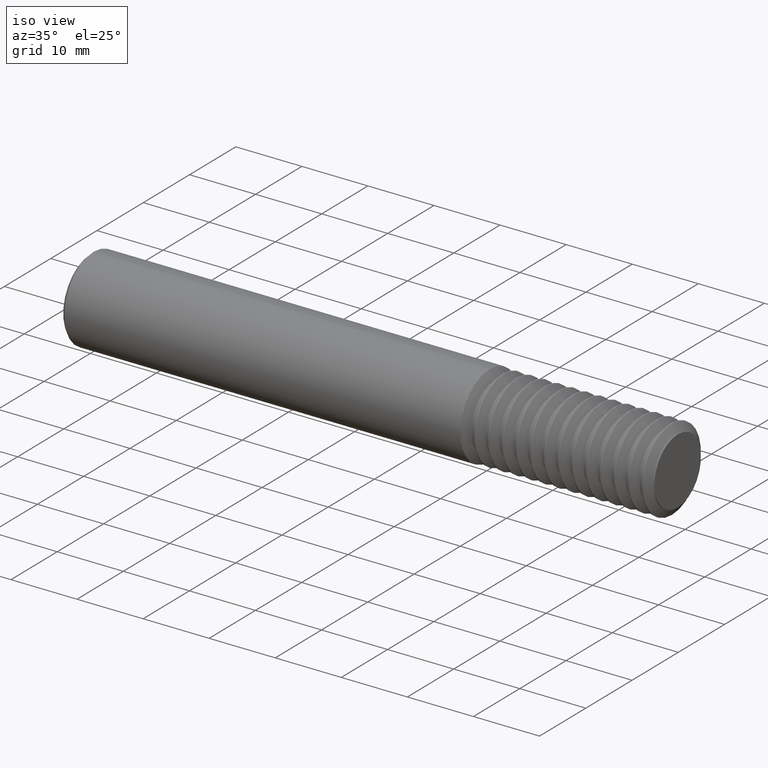
[diagram: clean part render]
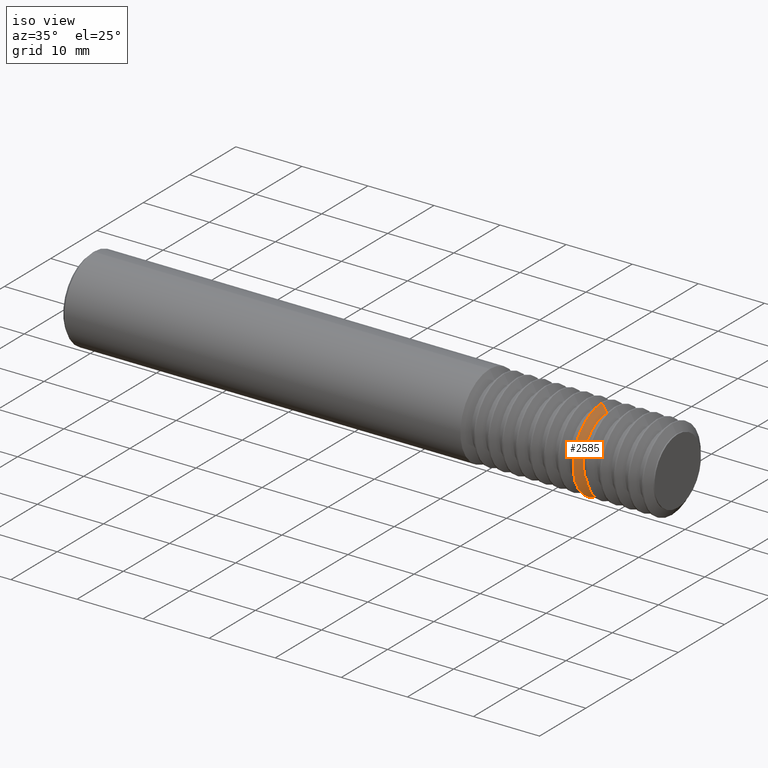
[diagram: same view with one face highlighted and labeled with its STEP entity id]
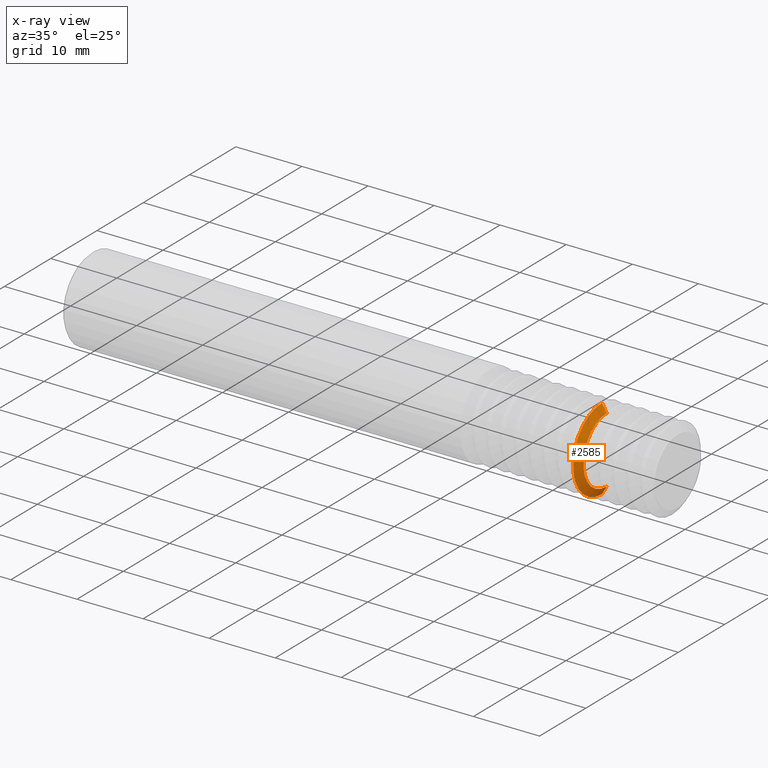
[diagram: x-ray of the same camera — body ghosted, the highlighted face saturated]
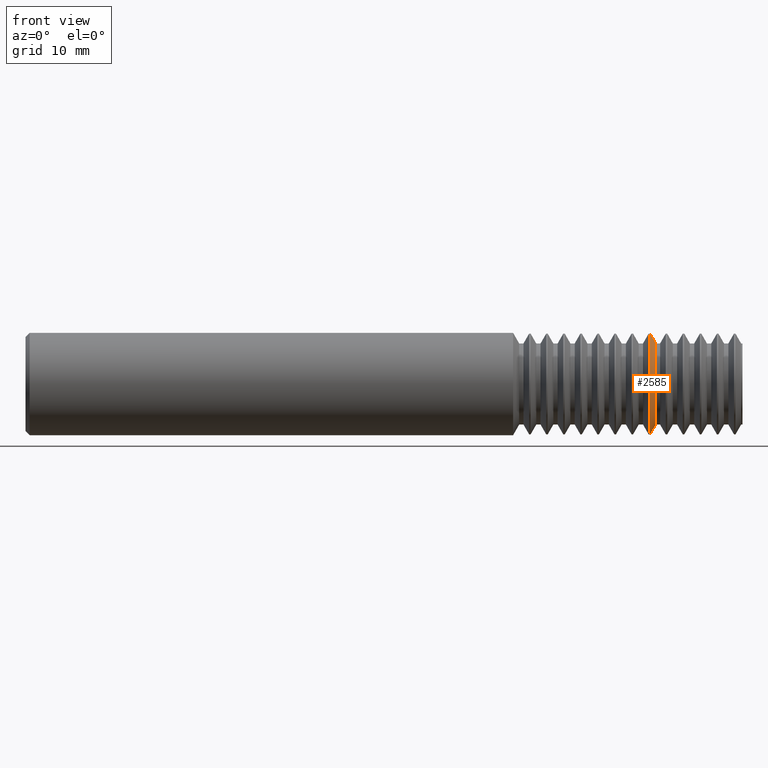
[diagram: same view with one face highlighted and labeled with its STEP entity id]
A machine part, iso view. The second image highlights one B-rep face of the part: STEP entity #2585.
The next image is the same camera in x-ray: the body ghosted, the highlighted face saturated — about 0% of this face is hidden behind the body in this view.
A second angle (front view) of the same face is appended — the face is thin or edge-on in the first view.
In plain terms, the highlighted conical surface has half-angle 60.2 deg.
Its self-contained STEP definition (entity closure, byte-faithful):
#35 = CARTESIAN_POINT ( 'NONE',  ( 3.076499999999999346, 2.717894686365593704E-17, -0.1978658865981437198 ) ) ;
#193 = DIRECTION ( 'NONE',  ( -1.000000000000000000, -0.000000000000000000, -0.000000000000000000 ) ) ;
#223 = DIRECTION ( 'NONE',  ( 0.000000000000000000, 0.000000000000000000, 1.000000000000000000 ) ) ;
#260 = ORIENTED_EDGE ( 'NONE', *, *, #1754, .T. ) ;
#279 = VECTOR ( 'NONE', #369, 39.37007874015748143 ) ;
#317 = EDGE_CURVE ( 'NONE', #976, #1672, #663, .T. ) ;
#369 = DIRECTION ( 'NONE',  ( -0.4969739610275520914, 1.062706184878912255E-16, -0.8677654533689302951 ) ) ;
#495 = CARTESIAN_POINT ( 'NONE',  ( 3.037479225334491773, 0.000000000000000000, 0.2659999999999999587 ) ) ;
#539 = DIRECTION ( 'NONE',  ( 0.000000000000000000, 0.000000000000000000, 1.000000000000000000 ) ) ;
#642 = CARTESIAN_POINT ( 'NONE',  ( 3.037479225334491773, 0.000000000000000000, 0.000000000000000000 ) ) ;
#663 = CIRCLE ( 'NONE', #1804, 0.2459999999999999964 ) ;
#682 = DIRECTION ( 'NONE',  ( -0.4969739610275520914, 0.000000000000000000, 0.8677654533689302951 ) ) ;
#708 = EDGE_CURVE ( 'NONE', #1352, #976, #934, .T. ) ;
#727 = CARTESIAN_POINT ( 'NONE',  ( 3.048933333333333273, 3.012631125902488382E-17, -0.2459999999999999964 ) ) ;
#778 = CONICAL_SURFACE ( 'NONE', #1634, 0.2659999999999999587, 1.050688209700590070 ) ;
#795 = DIRECTION ( 'NONE',  ( -1.000000000000000000, -0.000000000000000000, -0.000000000000000000 ) ) ;
#934 = LINE ( 'NONE', #495, #1127 ) ;
#972 = EDGE_CURVE ( 'NONE', #2355, #1672, #2872, .T. ) ;
#976 = VERTEX_POINT ( 'NONE', #1033 ) ;
#995 = AXIS2_PLACEMENT_3D ( 'NONE', #2119, #795, #539 ) ;
#1033 = CARTESIAN_POINT ( 'NONE',  ( 3.048933333333333273, 0.000000000000000000, 0.2459999999999999964 ) ) ;
#1127 = VECTOR ( 'NONE', #682, 39.37007874015748143 ) ;
#1265 = EDGE_LOOP ( 'NONE', ( #1965, #260, #1566, #2373 ) ) ;
#1352 = VERTEX_POINT ( 'NONE', #1954 ) ;
#1355 = DIRECTION ( 'NONE',  ( 0.000000000000000000, 0.000000000000000000, 1.000000000000000000 ) ) ;
#1566 = ORIENTED_EDGE ( 'NONE', *, *, #708, .T. ) ;
#1634 = AXIS2_PLACEMENT_3D ( 'NONE', #642, #193, #223 ) ;
#1672 = VERTEX_POINT ( 'NONE', #727 ) ;
#1754 = EDGE_CURVE ( 'NONE', #2355, #1352, #2661, .T. ) ;
#1804 = AXIS2_PLACEMENT_3D ( 'NONE', #1805, #2483, #1355 ) ;
#1805 = CARTESIAN_POINT ( 'NONE',  ( 3.048933333333333273, 0.000000000000000000, 0.000000000000000000 ) ) ;
#1954 = CARTESIAN_POINT ( 'NONE',  ( 3.076499999999999346, 0.000000000000000000, 0.1978658865981437198 ) ) ;
#1965 = ORIENTED_EDGE ( 'NONE', *, *, #972, .F. ) ;
#2119 = CARTESIAN_POINT ( 'NONE',  ( 3.076499999999999346, 0.000000000000000000, 0.000000000000000000 ) ) ;
#2198 = FACE_OUTER_BOUND ( 'NONE', #1265, .T. ) ;
#2355 = VERTEX_POINT ( 'NONE', #35 ) ;
#2373 = ORIENTED_EDGE ( 'NONE', *, *, #317, .T. ) ;
#2398 = CARTESIAN_POINT ( 'NONE',  ( 3.037479225334491773, 3.257560485731959097E-17, -0.2659999999999999587 ) ) ;
#2483 = DIRECTION ( 'NONE',  ( 1.000000000000000000, 0.000000000000000000, 0.000000000000000000 ) ) ;
#2585 = ADVANCED_FACE ( 'NONE', ( #2198 ), #778, .T. ) ;
#2661 = CIRCLE ( 'NONE', #995, 0.1978658865981437198 ) ;
#2872 = LINE ( 'NONE', #2398, #279 ) ;